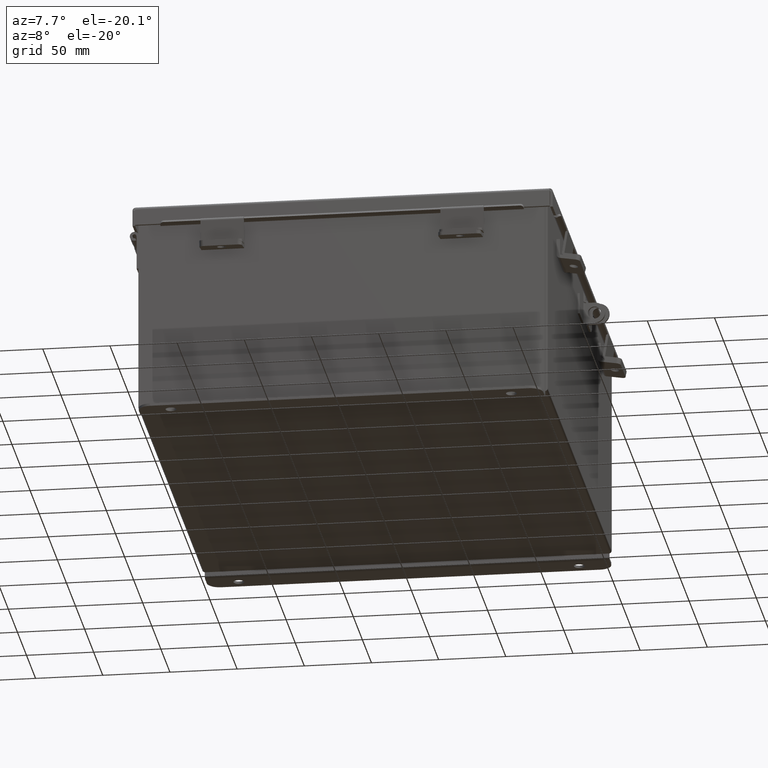
[diagram: clean part render]
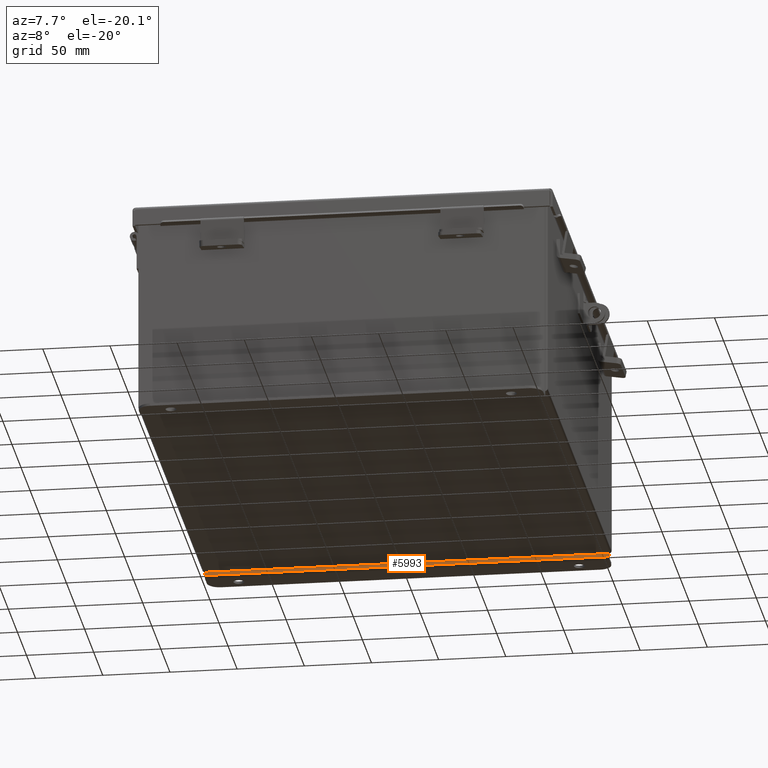
[diagram: same view with one face highlighted and labeled with its STEP entity id]
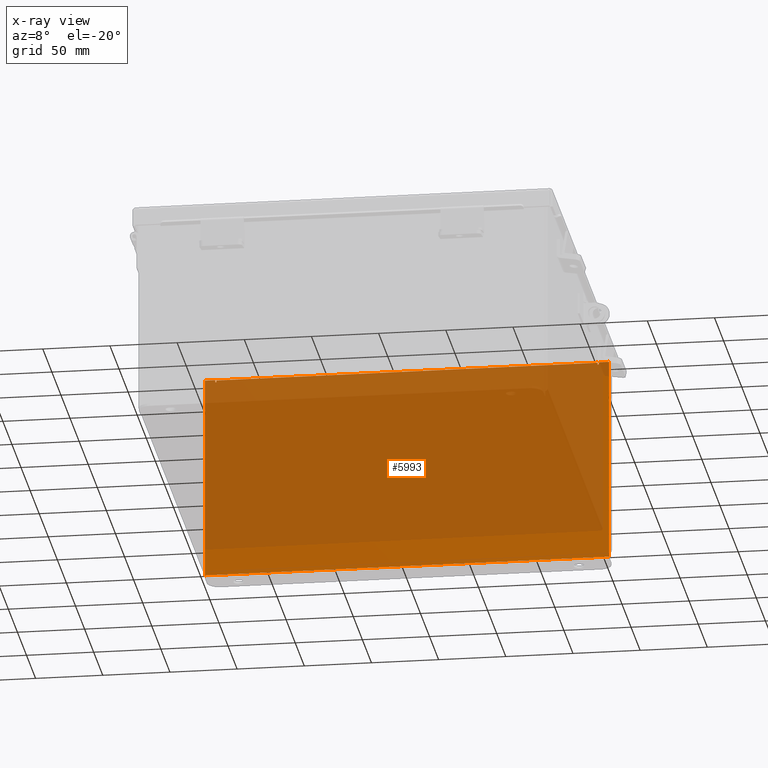
[diagram: x-ray of the same camera — body ghosted, the highlighted face saturated]
A machine part, auxiliary view. The second image highlights one B-rep face of the part: STEP entity #5993.
The next image is the same camera in x-ray: the body ghosted, the highlighted face saturated — about 85% of this face is hidden behind the body in this view.
In plain terms, the highlighted planar face has unit normal (0, -1, 0).
Its self-contained STEP definition (entity closure, byte-faithful):
#42 = LINE ( 'NONE', #6497, #6916 ) ;
#539 = LINE ( 'NONE', #7481, #11778 ) ;
#596 = ORIENTED_EDGE ( 'NONE', *, *, #12686, .F. ) ;
#880 = EDGE_CURVE ( 'NONE', #7629, #5435, #14076, .T. ) ;
#1133 = DIRECTION ( 'NONE',  ( 1.000000000000000000, 0.0000000000000000000, 0.0000000000000000000 ) ) ;
#1298 = VERTEX_POINT ( 'NONE', #2012 ) ;
#1447 = CARTESIAN_POINT ( 'NONE',  ( 5.925299999999999100, -0.07470000000000015500, 2.925299999999999600 ) ) ;
#1607 = VECTOR ( 'NONE', #1133, 39.37007874015748100 ) ;
#1686 = PLANE ( 'NONE',  #3935 ) ;
#2012 = CARTESIAN_POINT ( 'NONE',  ( 5.925299999999999100, -0.07470000000000015500, -3.099299999999999900 ) ) ;
#2137 = VECTOR ( 'NONE', #4915, 39.37007874015748100 ) ;
#2354 = EDGE_LOOP ( 'NONE', ( #16677, #6674, #596, #11904, #8296, #11817, #8476, #15284, #15994, #8373, #2813, #14740 ) ) ;
#2586 = LINE ( 'NONE', #12890, #13777 ) ;
#2597 = CARTESIAN_POINT ( 'NONE',  ( 5.582299999999999200, -0.07469999999999797600, 2.912299999999999200 ) ) ;
#2631 = CARTESIAN_POINT ( 'NONE',  ( -5.619650000000000000, -0.07470000000000015500, 2.925299999999999600 ) ) ;
#2813 = ORIENTED_EDGE ( 'NONE', *, *, #10621, .F. ) ;
#2874 = CARTESIAN_POINT ( 'NONE',  ( 5.582299999999999200, -0.07470000000000015500, 2.912299999999999200 ) ) ;
#3183 = EDGE_CURVE ( 'NONE', #10628, #7629, #42, .T. ) ;
#3401 = DIRECTION ( 'NONE',  ( 0.0000000000000000000, 2.272018564740578300E-014, -1.000000000000000000 ) ) ;
#3422 = VERTEX_POINT ( 'NONE', #8225 ) ;
#3712 = EDGE_CURVE ( 'NONE', #15317, #1298, #3904, .T. ) ;
#3904 = LINE ( 'NONE', #7886, #8751 ) ;
#3913 = VECTOR ( 'NONE', #10446, 39.37007874015748100 ) ;
#3935 = AXIS2_PLACEMENT_3D ( 'NONE', #18642, #4038, #16060 ) ;
#4038 = DIRECTION ( 'NONE',  ( 0.0000000000000000000, -1.000000000000000000, 0.0000000000000000000 ) ) ;
#4192 = EDGE_CURVE ( 'NONE', #18947, #11903, #13520, .T. ) ;
#4312 = CIRCLE ( 'NONE', #15223, 0.01867500000000003900 ) ;
#4915 = DIRECTION ( 'NONE',  ( 0.0000000000000000000, 0.0000000000000000000, -1.000000000000000000 ) ) ;
#5007 = CARTESIAN_POINT ( 'NONE',  ( -5.925300000000001800, -0.07470000000000015500, 2.925299999999999600 ) ) ;
#5415 = CARTESIAN_POINT ( 'NONE',  ( 5.619649999999999100, -0.07469999999999797600, 2.874949999999998300 ) ) ;
#5435 = VERTEX_POINT ( 'NONE', #18035 ) ;
#5442 = LINE ( 'NONE', #5448, #1607 ) ;
#5448 = CARTESIAN_POINT ( 'NONE',  ( -5.582300000000000900, -0.07469999999999797600, 2.912299999999999200 ) ) ;
#5993 = ADVANCED_FACE ( 'NONE', ( #8353 ), #1686, .T. ) ;
#6012 = LINE ( 'NONE', #11930, #2137 ) ;
#6043 = EDGE_CURVE ( 'NONE', #5435, #9952, #539, .T. ) ;
#6223 = LINE ( 'NONE', #5415, #9669 ) ;
#6497 = CARTESIAN_POINT ( 'NONE',  ( -5.619650000000000000, -0.07469999999999907300, 2.925299999999999600 ) ) ;
#6657 = VERTEX_POINT ( 'NONE', #13532 ) ;
#6674 = ORIENTED_EDGE ( 'NONE', *, *, #3183, .F. ) ;
#6730 = DIRECTION ( 'NONE',  ( 0.0000000000000000000, 0.0000000000000000000, -1.000000000000000000 ) ) ;
#6863 = AXIS2_PLACEMENT_3D ( 'NONE', #15094, #13886, #15271 ) ;
#6916 = VECTOR ( 'NONE', #3401, 39.37007874015748100 ) ;
#7037 = CARTESIAN_POINT ( 'NONE',  ( 5.600974999999998300, -0.07469999999999797600, 2.874949999999998300 ) ) ;
#7195 = EDGE_CURVE ( 'NONE', #12895, #12491, #2586, .T. ) ;
#7481 = CARTESIAN_POINT ( 'NONE',  ( -5.582300000000000000, -0.07469999999999797600, 2.874949999999998300 ) ) ;
#7629 = VERTEX_POINT ( 'NONE', #18018 ) ;
#7699 = EDGE_CURVE ( 'NONE', #15317, #6657, #7829, .T. ) ;
#7824 = LINE ( 'NONE', #15138, #15150 ) ;
#7829 = LINE ( 'NONE', #5007, #3913 ) ;
#7886 = CARTESIAN_POINT ( 'NONE',  ( -5.925300000000001800, -0.07470000000000015500, -3.099299999999999900 ) ) ;
#8225 = CARTESIAN_POINT ( 'NONE',  ( 5.619649999999999100, -0.07470000000000015500, 2.874949999999998300 ) ) ;
#8296 = ORIENTED_EDGE ( 'NONE', *, *, #3712, .T. ) ;
#8353 = FACE_OUTER_BOUND ( 'NONE', #2354, .T. ) ;
#8373 = ORIENTED_EDGE ( 'NONE', *, *, #4192, .F. ) ;
#8476 = ORIENTED_EDGE ( 'NONE', *, *, #7195, .F. ) ;
#8514 = DIRECTION ( 'NONE',  ( 0.0000000000000000000, 0.0000000000000000000, -1.000000000000000000 ) ) ;
#8751 = VECTOR ( 'NONE', #10045, 39.37007874015748100 ) ;
#9612 = VECTOR ( 'NONE', #6730, 39.37007874015748100 ) ;
#9669 = VECTOR ( 'NONE', #9859, 39.37007874015748100 ) ;
#9859 = DIRECTION ( 'NONE',  ( 2.170286390199955400E-014, -2.272018564740578300E-014, 1.000000000000000000 ) ) ;
#9952 = VERTEX_POINT ( 'NONE', #18701 ) ;
#10045 = DIRECTION ( 'NONE',  ( 1.000000000000000000, -0.0000000000000000000, -0.0000000000000000000 ) ) ;
#10446 = DIRECTION ( 'NONE',  ( -0.0000000000000000000, -0.0000000000000000000, 1.000000000000000000 ) ) ;
#10621 = EDGE_CURVE ( 'NONE', #9952, #18947, #5442, .T. ) ;
#10628 = VERTEX_POINT ( 'NONE', #2631 ) ;
#11491 = CARTESIAN_POINT ( 'NONE',  ( 5.582299999999999200, -0.07470000000000015500, 2.874949999999998300 ) ) ;
#11778 = VECTOR ( 'NONE', #14356, 39.37007874015748100 ) ;
#11817 = ORIENTED_EDGE ( 'NONE', *, *, #17360, .F. ) ;
#11903 = VERTEX_POINT ( 'NONE', #11491 ) ;
#11904 = ORIENTED_EDGE ( 'NONE', *, *, #7699, .F. ) ;
#11930 = CARTESIAN_POINT ( 'NONE',  ( 5.925299999999999100, -0.07470000000000015500, 2.925299999999999600 ) ) ;
#12491 = VERTEX_POINT ( 'NONE', #1447 ) ;
#12686 = EDGE_CURVE ( 'NONE', #6657, #10628, #7824, .T. ) ;
#12890 = CARTESIAN_POINT ( 'NONE',  ( -5.925300000000001800, -0.07470000000000015500, 2.925299999999999600 ) ) ;
#12895 = VERTEX_POINT ( 'NONE', #15621 ) ;
#13520 = LINE ( 'NONE', #2597, #9612 ) ;
#13532 = CARTESIAN_POINT ( 'NONE',  ( -5.925300000000001800, -0.07470000000000015500, 2.925299999999999600 ) ) ;
#13777 = VECTOR ( 'NONE', #17318, 39.37007874015748100 ) ;
#13886 = DIRECTION ( 'NONE',  ( 0.0000000000000000000, -1.000000000000000000, 0.0000000000000000000 ) ) ;
#14076 = CIRCLE ( 'NONE', #6863, 0.01867500000000003900 ) ;
#14356 = DIRECTION ( 'NONE',  ( 0.0000000000000000000, 0.0000000000000000000, 1.000000000000000000 ) ) ;
#14740 = ORIENTED_EDGE ( 'NONE', *, *, #6043, .F. ) ;
#14755 = EDGE_CURVE ( 'NONE', #11903, #3422, #4312, .T. ) ;
#15094 = CARTESIAN_POINT ( 'NONE',  ( -5.600975000000000000, -0.07469999999999797600, 2.874949999999998300 ) ) ;
#15138 = CARTESIAN_POINT ( 'NONE',  ( -5.925300000000001800, -0.07470000000000015500, 2.925299999999999600 ) ) ;
#15150 = VECTOR ( 'NONE', #16573, 39.37007874015748100 ) ;
#15223 = AXIS2_PLACEMENT_3D ( 'NONE', #7037, #17253, #8514 ) ;
#15271 = DIRECTION ( 'NONE',  ( 0.0000000000000000000, 0.0000000000000000000, -1.000000000000000000 ) ) ;
#15284 = ORIENTED_EDGE ( 'NONE', *, *, #17571, .F. ) ;
#15317 = VERTEX_POINT ( 'NONE', #18763 ) ;
#15621 = CARTESIAN_POINT ( 'NONE',  ( 5.619650000000000000, -0.07470000000000015500, 2.925299999999999600 ) ) ;
#15994 = ORIENTED_EDGE ( 'NONE', *, *, #14755, .F. ) ;
#16060 = DIRECTION ( 'NONE',  ( 0.0000000000000000000, -0.0000000000000000000, -1.000000000000000000 ) ) ;
#16573 = DIRECTION ( 'NONE',  ( 1.000000000000000000, 0.0000000000000000000, 0.0000000000000000000 ) ) ;
#16677 = ORIENTED_EDGE ( 'NONE', *, *, #880, .F. ) ;
#17253 = DIRECTION ( 'NONE',  ( 0.0000000000000000000, -1.000000000000000000, 0.0000000000000000000 ) ) ;
#17318 = DIRECTION ( 'NONE',  ( 1.000000000000000000, 0.0000000000000000000, 0.0000000000000000000 ) ) ;
#17360 = EDGE_CURVE ( 'NONE', #12491, #1298, #6012, .T. ) ;
#17571 = EDGE_CURVE ( 'NONE', #3422, #12895, #6223, .T. ) ;
#18018 = CARTESIAN_POINT ( 'NONE',  ( -5.619650000000000000, -0.07470000000000015500, 2.874949999999998300 ) ) ;
#18035 = CARTESIAN_POINT ( 'NONE',  ( -5.582300000000000000, -0.07470000000000015500, 2.874949999999998300 ) ) ;
#18642 = CARTESIAN_POINT ( 'NONE',  ( 0.0000000000000000000, -0.07470000000000015500, 0.0000000000000000000 ) ) ;
#18701 = CARTESIAN_POINT ( 'NONE',  ( -5.582300000000000000, -0.07470000000000015500, 2.912299999999999200 ) ) ;
#18763 = CARTESIAN_POINT ( 'NONE',  ( -5.925300000000000000, -0.07470000000000015500, -3.099299999999999900 ) ) ;
#18947 = VERTEX_POINT ( 'NONE', #2874 ) ;